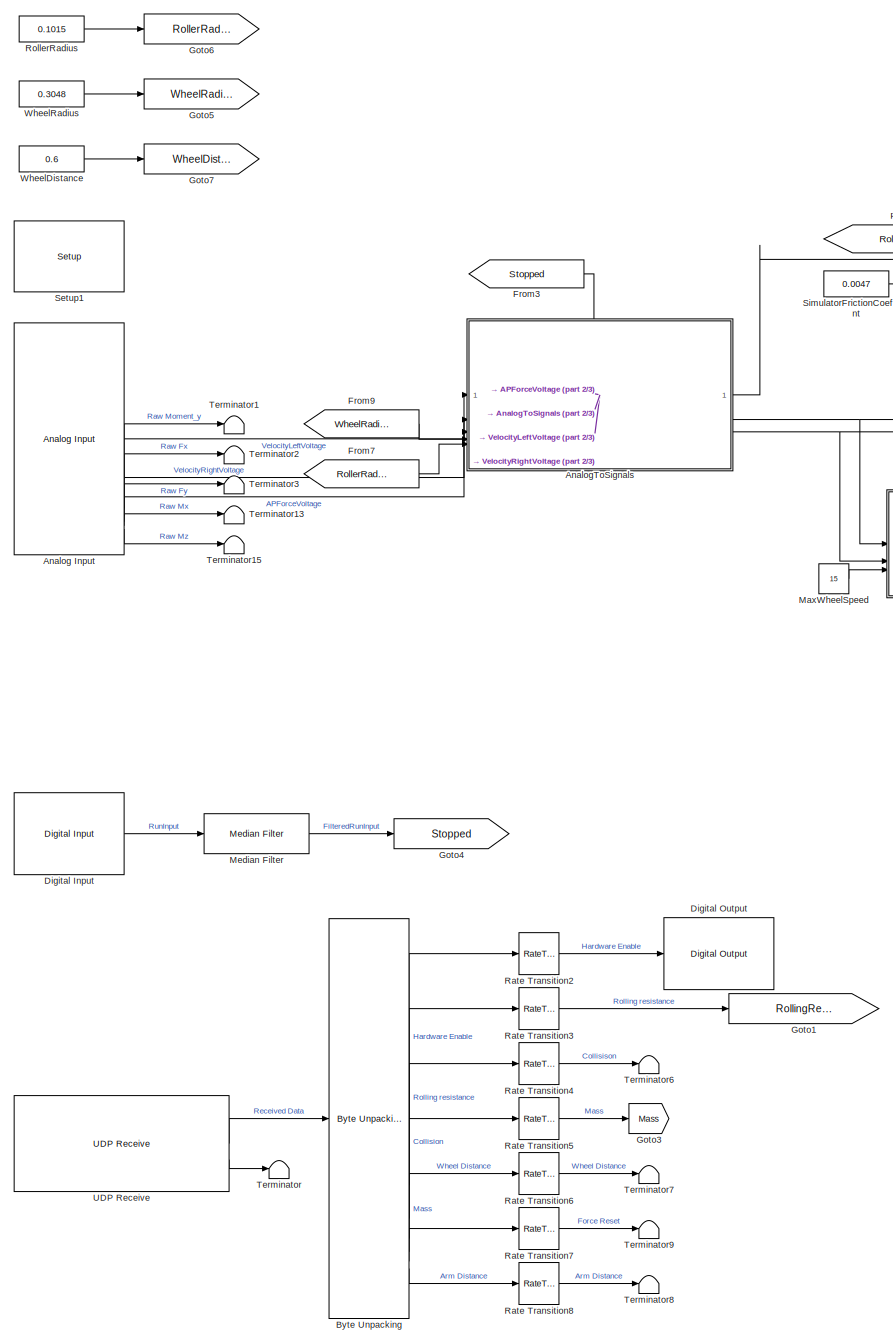
[diagram: root canvas - part 1/3, left side, full height]
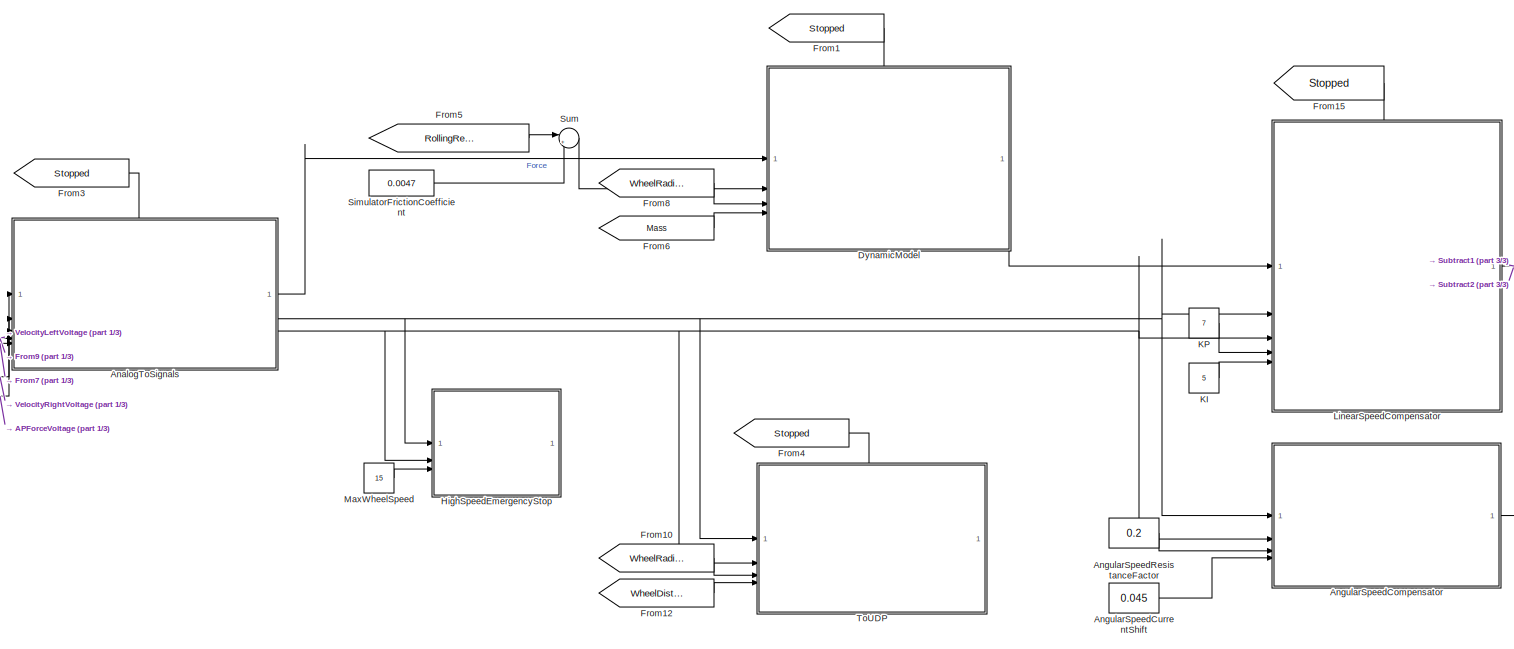
[diagram: root canvas - part 2/3, top center region]
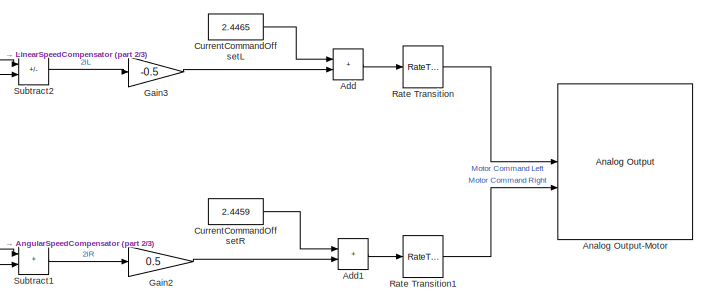
[diagram: root canvas - part 3/3, middle right region]
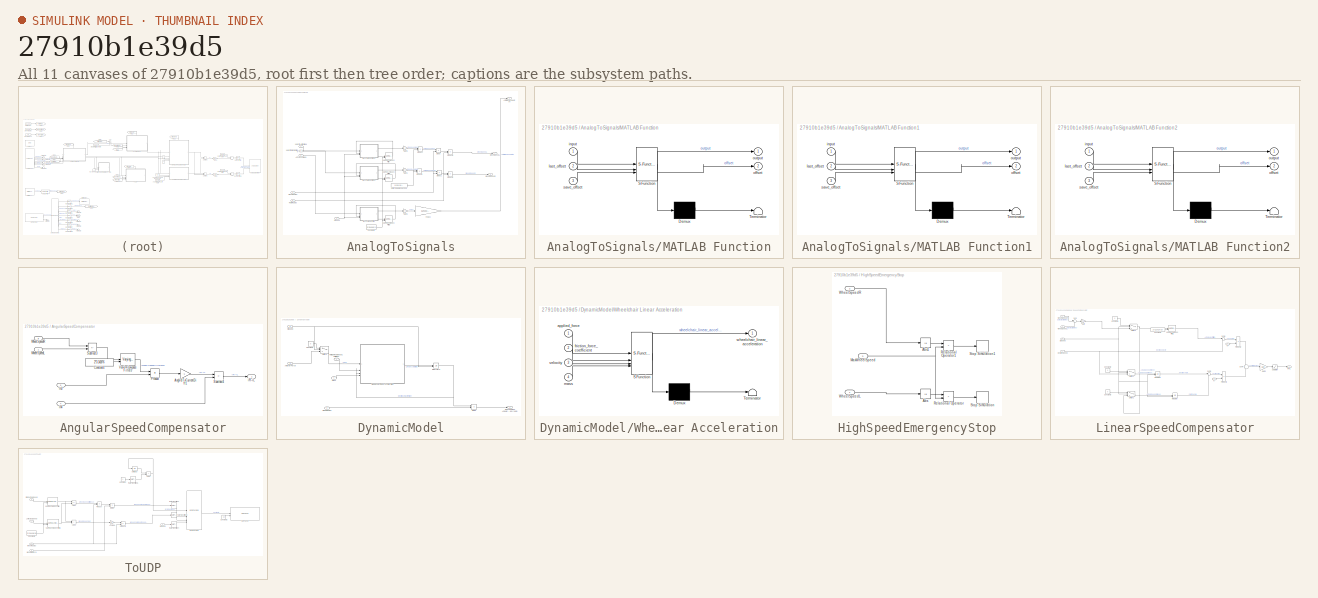
[diagram: thumbnail index - all 11 canvases of the model, root first then tree order]
MODEL slx_27910b1e39d5
KIND model
CONFIG AbsTol = auto
CONFIG EnableMultiTasking = off
CONFIG FixedStep = 1/2000
CONFIG MaxStep = auto
CONFIG MinStep = auto
CONFIG RelTol = 1e-3
CONFIG SampleTimeConstraint = Unconstrained
CONFIG SolverName = FixedStepAuto
CONFIG StartTime = 0.0
CONFIG StopTime = 1E6
BLOCK [Sum] Add
  IconShape = rectangular
BLOCK [Sum] Add1
  IconShape = rectangular
BLOCK [Reference] Analog Input  REF=speedgoatlib_IO183/Analog Input
  Priority = 0
  SourceBlock = speedgoatlib_IO183/Analog Input
  SourceProductName = Simulink Real-Time: Speedgoat I/O Blockset
  SourceType = ad_IO183
BLOCK [Reference] Analog Output-Motor  REF=speedgoatlib_IO183/Analog Output
  SourceBlock = speedgoatlib_IO183/Analog Output
  SourceProductName = Simulink Real-Time: Speedgoat I/O Blockset
  SourceType = da_IO183
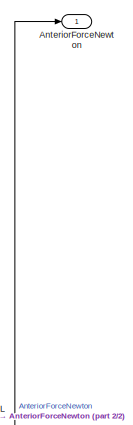
[diagram: AnalogToSignals - part 1/2, top right region]
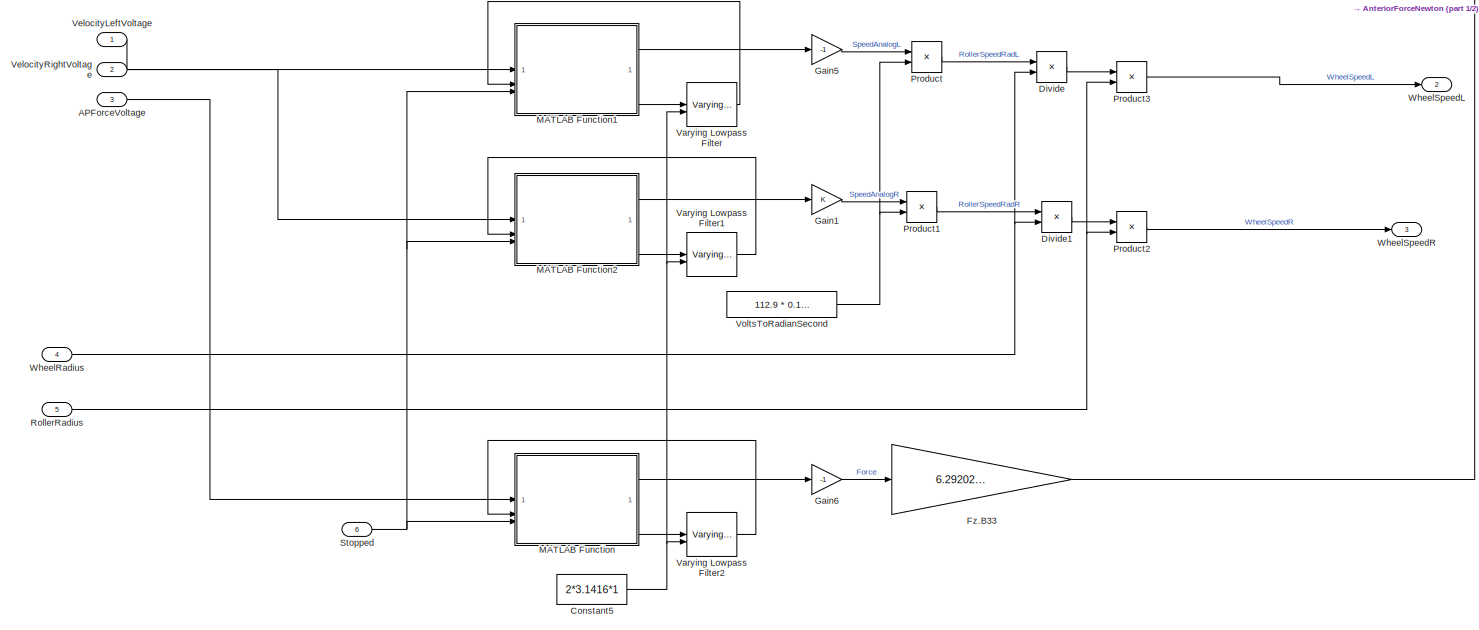
[diagram: AnalogToSignals - part 2/2, full width, middle band]
BLOCK [SubSystem] AnalogToSignals
  PortSchema = {"entries":[{"content":{"sides":[{"content":{"connectorIds":["In1","In2","In3","In4","In5"]},"type":"ConnectorPlacement.EquallySpacedRectSide","uuid":"33d34f65-8288-4f26-a259-c6a495dc8706"},{"content":{"connectorIds":["Out1","Out2","Out3"],"side":"RIGHT"},"type":"ConnectorPlacement.EquallySpacedRectSide","uuid":"464c1a73-e25a-412b-b070-c0497a01c93b"},{"content":{"connectorIds":["In6"],"side":"TOP"...<+283ch>
BLOCK [Inport] AnalogToSignals/APForceVoltage
  Port = 3
BLOCK [Outport] AnalogToSignals/AnteriorForceNewton
BLOCK [Constant] AnalogToSignals/Constant5
  Value = 2*3.1416*1
BLOCK [Product] AnalogToSignals/Divide
  Inputs = */
BLOCK [Product] AnalogToSignals/Divide1
  Inputs = */
BLOCK [Gain] AnalogToSignals/Fz.B33
  Gain = 6.29202 / (10 * 1000  * 1e-6)
BLOCK [Gain] AnalogToSignals/Gain1
BLOCK [Gain] AnalogToSignals/Gain5
  Gain = -1
BLOCK [Gain] AnalogToSignals/Gain6
  Gain = -1
BLOCK [SubSystem] AnalogToSignals/MATLAB Function
  ErrorFcn = Stateflow.Translate.translate
  LibrarySourceBlock = simulink/User-Defined\nFunctions/MATLAB Function
  PermitHierarchicalResolution = ExplicitOnly
  SFBlockType = MATLAB Function
  TreatAsAtomicUnit = on
BLOCK [Demux] AnalogToSignals/MATLAB Function/ Demux 
  Outputs = 1
BLOCK [S-Function] AnalogToSignals/MATLAB Function/ SFunction 
  EnableBusSupport = on
  FunctionName = sf_sfun
  PortCounts = [3 3]
  SFcnIsStateOwnerBlock = off
  SFunctionDeploymentMode = off
  Tag = Stateflow S-Function 4
BLOCK [Terminator] AnalogToSignals/MATLAB Function/ Terminator 
BLOCK [Inport] AnalogToSignals/MATLAB Function/input
BLOCK [Inport] AnalogToSignals/MATLAB Function/last_offset
  Port = 2
BLOCK [Outport] AnalogToSignals/MATLAB Function/offset
  Port = 2
BLOCK [Outport] AnalogToSignals/MATLAB Function/output
BLOCK [Inport] AnalogToSignals/MATLAB Function/save_offset
  Port = 3
BLOCK [SubSystem] AnalogToSignals/MATLAB Function1
  ErrorFcn = Stateflow.Translate.translate
  LibrarySourceBlock = simulink/User-Defined\nFunctions/MATLAB Function
  PermitHierarchicalResolution = ExplicitOnly
  SFBlockType = MATLAB Function
  TreatAsAtomicUnit = on
BLOCK [Demux] AnalogToSignals/MATLAB Function1/ Demux 
  Outputs = 1
BLOCK [S-Function] AnalogToSignals/MATLAB Function1/ SFunction 
  EnableBusSupport = on
  FunctionName = sf_sfun
  PortCounts = [3 3]
  SFcnIsStateOwnerBlock = off
  SFunctionDeploymentMode = off
  Tag = Stateflow S-Function 5
BLOCK [Terminator] AnalogToSignals/MATLAB Function1/ Terminator 
BLOCK [Inport] AnalogToSignals/MATLAB Function1/input
BLOCK [Inport] AnalogToSignals/MATLAB Function1/last_offset
  Port = 2
BLOCK [Outport] AnalogToSignals/MATLAB Function1/offset
  Port = 2
BLOCK [Outport] AnalogToSignals/MATLAB Function1/output
BLOCK [Inport] AnalogToSignals/MATLAB Function1/save_offset
  Port = 3
BLOCK [SubSystem] AnalogToSignals/MATLAB Function2
  ErrorFcn = Stateflow.Translate.translate
  LibrarySourceBlock = simulink/User-Defined\nFunctions/MATLAB Function
  PermitHierarchicalResolution = ExplicitOnly
  SFBlockType = MATLAB Function
  TreatAsAtomicUnit = on
BLOCK [Demux] AnalogToSignals/MATLAB Function2/ Demux 
  Outputs = 1
BLOCK [S-Function] AnalogToSignals/MATLAB Function2/ SFunction 
  EnableBusSupport = on
  FunctionName = sf_sfun
  PortCounts = [3 3]
  SFcnIsStateOwnerBlock = off
  SFunctionDeploymentMode = off
  Tag = Stateflow S-Function 6
BLOCK [Terminator] AnalogToSignals/MATLAB Function2/ Terminator 
BLOCK [Inport] AnalogToSignals/MATLAB Function2/input
BLOCK [Inport] AnalogToSignals/MATLAB Function2/last_offset
  Port = 2
BLOCK [Outport] AnalogToSignals/MATLAB Function2/offset
  Port = 2
BLOCK [Outport] AnalogToSignals/MATLAB Function2/output
BLOCK [Inport] AnalogToSignals/MATLAB Function2/save_offset
  Port = 3
BLOCK [Product] AnalogToSignals/Product
BLOCK [Product] AnalogToSignals/Product1
BLOCK [Product] AnalogToSignals/Product2
BLOCK [Product] AnalogToSignals/Product3
BLOCK [Inport] AnalogToSignals/RollerRadius
  Port = 5
BLOCK [Inport] AnalogToSignals/Stopped
  Port = 6
BLOCK [Reference] AnalogToSignals/Varying Lowpass Filter  REF=cstblocks/Linear Parameter Varying/Varying Lowpass Filter
  SourceBlock = cstblocks/Linear Parameter Varying/Varying Lowpass Filter
  SourceType = Varying Lowpass Filter
BLOCK [Reference] AnalogToSignals/Varying Lowpass Filter1  REF=cstblocks/Linear Parameter Varying/Varying Lowpass Filter
  SourceBlock = cstblocks/Linear Parameter Varying/Varying Lowpass Filter
  SourceType = Varying Lowpass Filter
BLOCK [Reference] AnalogToSignals/Varying Lowpass Filter2  REF=cstblocks/Linear Parameter Varying/Varying Lowpass Filter
  SourceBlock = cstblocks/Linear Parameter Varying/Varying Lowpass Filter
  SourceType = Varying Lowpass Filter
BLOCK [Inport] AnalogToSignals/VelocityLeftVoltage
BLOCK [Inport] AnalogToSignals/VelocityRightVoltage
  Port = 2
BLOCK [Constant] AnalogToSignals/VoltsToRadianSecond
  Value = 112.9 * 0.10472
BLOCK [Inport] AnalogToSignals/WheelRadius
  Port = 4
BLOCK [Outport] AnalogToSignals/WheelSpeedL
  Port = 2
BLOCK [Outport] AnalogToSignals/WheelSpeedR
  Port = 3
BLOCK [SubSystem] AngularSpeedCompensator
BLOCK [Gain] AngularSpeedCompensator/AngVelToCurrentDiff1
  Gain = -1
BLOCK [Constant] AngularSpeedCompensator/Constant4
  Value = 2*3.1416*6
BLOCK [Inport] AngularSpeedCompensator/In3
  Port = 3
BLOCK [Inport] AngularSpeedCompensator/In4
  Port = 4
BLOCK [Product] AngularSpeedCompensator/Product
BLOCK [Sum] AngularSpeedCompensator/Subtract3
  IconShape = rectangular
  Inputs = +-
BLOCK [Sum] AngularSpeedCompensator/Subtract4
  IconShape = rectangular
  Inputs = +-
BLOCK [Reference] AngularSpeedCompensator/Varying Lowpass Filter3  REF=cstblocks/Linear Parameter Varying/Varying Lowpass Filter
  SourceBlock = cstblocks/Linear Parameter Varying/Varying Lowpass Filter
  SourceType = Varying Lowpass Filter
BLOCK [Inport] AngularSpeedCompensator/WheelSpeedL
BLOCK [Inport] AngularSpeedCompensator/WheelSpeedR
  Port = 2
BLOCK [Outport] AngularSpeedCompensator/iR-iL
BLOCK [Constant] AngularSpeedCurrentShift
  Value = 0.045
BLOCK [Constant] AngularSpeedResistanceFactor
  Value = 0.2
BLOCK [Reference] Byte Unpacking  REF=slrealtimeutilitieslib/Byte Unpacking
  SourceBlock = slrealtimeutilitieslib/Byte Unpacking
  SourceType = slreraltimebytepacking
BLOCK [Constant] CurrentCommandOffsetL
  Value = 2.4465
BLOCK [Constant] CurrentCommandOffsetR
  Value = 2.4459
BLOCK [Reference] Digital Input  REF=speedgoatlib_IO183/Digital Input
  SourceBlock = speedgoatlib_IO183/Digital Input
  SourceProductName = Simulink Real-Time: Speedgoat I/O Blockset
  SourceType = di_IO183
BLOCK [Reference] Digital Output  REF=speedgoatlib_IO183/Digital Output
  SourceBlock = speedgoatlib_IO183/Digital Output
  SourceProductName = Simulink Real-Time: Speedgoat I/O Blockset
  SourceType = do_IO183
BLOCK [SubSystem] DynamicModel
  PortSchema = {"entries":[{"content":{"sides":[{"content":{"connectorIds":["In1","In2","In3","In4"]},"type":"ConnectorPlacement.EquallySpacedRectSide","uuid":"698b5f1b-e41d-47ec-8a78-8e111d48540c"},{"content":{"connectorIds":["Out1"],"side":"RIGHT"},"type":"ConnectorPlacement.EquallySpacedRectSide","uuid":"a52a2d34-ec8e-4f9e-8684-ea9d86dd283b"},{"content":{"connectorIds":["In5"],"side":"TOP"},"type":"ConnectorP...<+263ch>
BLOCK [Inport] DynamicModel/AnteriorForce 
BLOCK [Constant] DynamicModel/Constant7
  Value = 0
BLOCK [Outport] DynamicModel/Desired Mean Angular Speed (rad//s)
BLOCK [Product] DynamicModel/Divide
  Inputs = */
BLOCK [Integrator] DynamicModel/Integrator6
  ExternalReset = level hold
BLOCK [Inport] DynamicModel/Mass
  Port = 4
BLOCK [Inport] DynamicModel/RollingResistanceCoefficient
  Port = 2
BLOCK [Inport] DynamicModel/Stopped
  Port = 5
BLOCK [Switch] DynamicModel/Switch2
  Criteria = u2 ~= 0
  InputSameDT = off
  SaturateOnIntegerOverflow = off
BLOCK [Inport] DynamicModel/WheelRadius
  Port = 3
BLOCK [SubSystem] DynamicModel/Wheelchair Linear Acceleration
  ErrorFcn = Stateflow.Translate.translate
  PermitHierarchicalResolution = ExplicitOnly
  SFBlockType = MATLAB Function
  TreatAsAtomicUnit = on
BLOCK [Demux] DynamicModel/Wheelchair Linear Acceleration/ Demux 
  Outputs = 1
BLOCK [S-Function] DynamicModel/Wheelchair Linear Acceleration/ SFunction 
  EnableBusSupport = on
  FunctionName = sf_sfun
  PortCounts = [4 2]
  SFcnIsStateOwnerBlock = off
  SFunctionDeploymentMode = off
  Tag = Stateflow S-Function 7
BLOCK [Terminator] DynamicModel/Wheelchair Linear Acceleration/ Terminator 
BLOCK [Inport] DynamicModel/Wheelchair Linear Acceleration/applied_force
BLOCK [Inport] DynamicModel/Wheelchair Linear Acceleration/friction_force_coefficient
  Port = 2
BLOCK [Inport] DynamicModel/Wheelchair Linear Acceleration/mass
  Port = 4
BLOCK [Inport] DynamicModel/Wheelchair Linear Acceleration/velocity
  Port = 3
BLOCK [Outport] DynamicModel/Wheelchair Linear Acceleration/wheelchair_linear_acceleration
BLOCK [From] From1
  GotoTag = Stopped
BLOCK [From] From10
  GotoTag = WheelRadius
BLOCK [From] From12
  GotoTag = WheelDistance
BLOCK [From] From15
  GotoTag = Stopped
BLOCK [From] From3
  GotoTag = Stopped
BLOCK [From] From4
  GotoTag = Stopped
BLOCK [From] From5
  GotoTag = RollingResistanceCoefficient
BLOCK [From] From6
  GotoTag = Mass
BLOCK [From] From7
  GotoTag = RollerRadius
BLOCK [From] From8
  GotoTag = WheelRadius
BLOCK [From] From9
  GotoTag = WheelRadius
BLOCK [Gain] Gain2
  Gain = 0.5
BLOCK [Gain] Gain3
  Gain = -0.5
BLOCK [Goto] Goto1
  GotoTag = RollingResistanceCoefficient
BLOCK [Goto] Goto3
  GotoTag = Mass
BLOCK [Goto] Goto4
  GotoTag = Stopped
BLOCK [Goto] Goto5
  GotoTag = WheelRadius
BLOCK [Goto] Goto6
  GotoTag = RollerRadius
BLOCK [Goto] Goto7
  GotoTag = WheelDistance
BLOCK [SubSystem] HighSpeedEmergencyStop
BLOCK [Abs] HighSpeedEmergencyStop/Abs
  SaturateOnIntegerOverflow = off
BLOCK [Abs] HighSpeedEmergencyStop/Abs1
  SaturateOnIntegerOverflow = off
BLOCK [Inport] HighSpeedEmergencyStop/MaxWheelSpeed
  Port = 3
BLOCK [RelationalOperator] HighSpeedEmergencyStop/Relational Operator
  InputSameDT = off
  Operator = >
  OutDataTypeStr = boolean
  RndMeth = Simplest
BLOCK [RelationalOperator] HighSpeedEmergencyStop/Relational Operator1
  InputSameDT = off
  Operator = >
  OutDataTypeStr = boolean
  RndMeth = Simplest
BLOCK [Stop] HighSpeedEmergencyStop/Stop Simulation
BLOCK [Stop] HighSpeedEmergencyStop/Stop Simulation1
BLOCK [Inport] HighSpeedEmergencyStop/WheelSpeedL
BLOCK [Inport] HighSpeedEmergencyStop/WheelSpeedR
  Port = 2
BLOCK [Constant] KI
  Value = 5
BLOCK [Constant] KP
  Value = 7
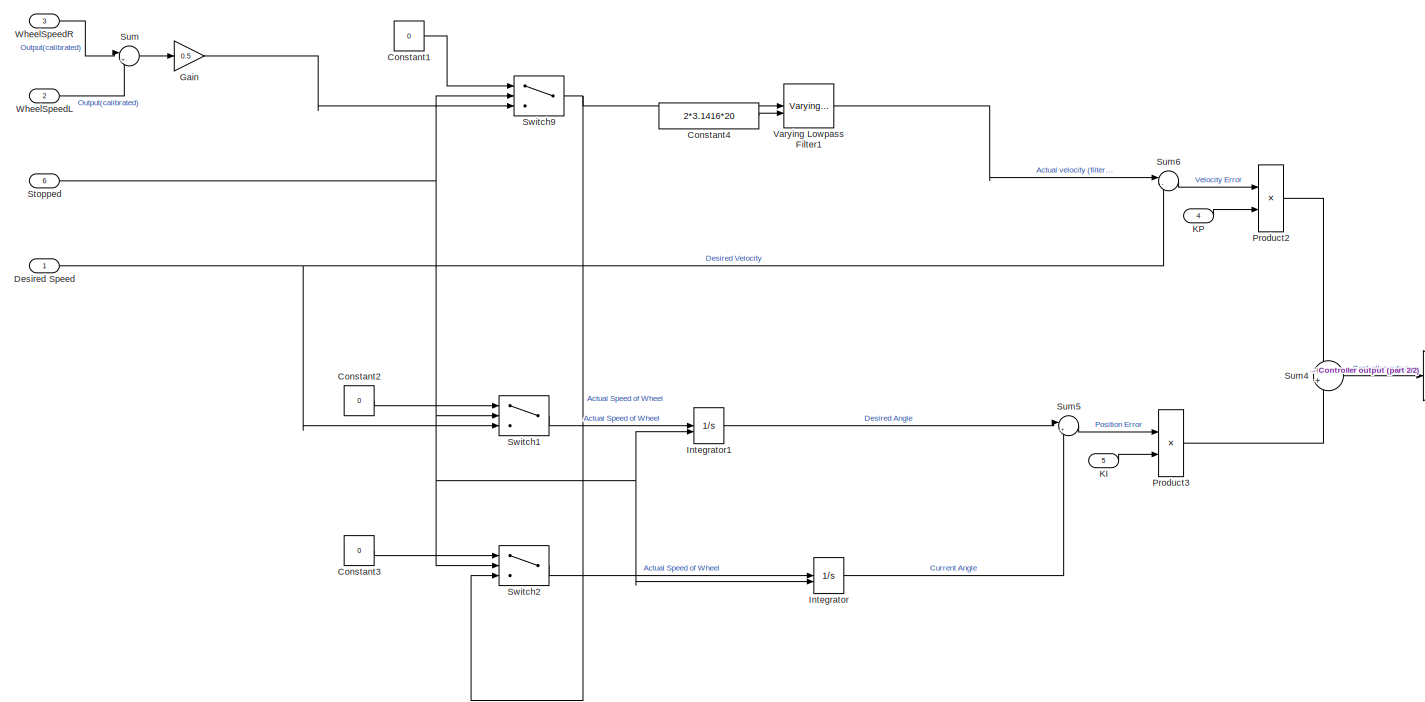
[diagram: LinearSpeedCompensator - part 1/2, most of the canvas]
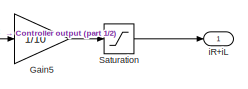
[diagram: LinearSpeedCompensator - part 2/2, middle right region]
BLOCK [SubSystem] LinearSpeedCompensator
  PortSchema = {"entries":[{"content":{"sides":[{"content":{"connectorIds":["In1","In2","In3","In4","In5"]},"type":"ConnectorPlacement.EquallySpacedRectSide","uuid":"9b7edc03-5e72-48f4-bed7-21920e73c297"},{"content":{"connectorIds":["Out1"],"side":"RIGHT"},"type":"ConnectorPlacement.EquallySpacedRectSide","uuid":"1856f1b7-fc85-471c-9138-bfce3ff137ef"},{"content":{"connectorIds":["In6"],"side":"TOP"},"type":"Conn...<+269ch>
BLOCK [Constant] LinearSpeedCompensator/Constant1
  Value = 0
BLOCK [Constant] LinearSpeedCompensator/Constant2
  Value = 0
BLOCK [Constant] LinearSpeedCompensator/Constant3
  Value = 0
BLOCK [Constant] LinearSpeedCompensator/Constant4
  Value = 2*3.1416*20
BLOCK [Inport] LinearSpeedCompensator/Desired Speed
BLOCK [Gain] LinearSpeedCompensator/Gain
  Gain = 0.5
BLOCK [Gain] LinearSpeedCompensator/Gain5
  Gain = 1/10
BLOCK [Integrator] LinearSpeedCompensator/Integrator
  ExternalReset = level hold
BLOCK [Integrator] LinearSpeedCompensator/Integrator1
  ExternalReset = level hold
BLOCK [Inport] LinearSpeedCompensator/KI
  Port = 5
BLOCK [Inport] LinearSpeedCompensator/KP
  Port = 4
BLOCK [Product] LinearSpeedCompensator/Product2
  RndMeth = Zero
BLOCK [Product] LinearSpeedCompensator/Product3
  RndMeth = Zero
BLOCK [Saturate] LinearSpeedCompensator/Saturation
  LowerLimit = -4
  UpperLimit = 4
BLOCK [Inport] LinearSpeedCompensator/Stopped
  Port = 6
BLOCK [Sum] LinearSpeedCompensator/Sum
  Inputs = |++
BLOCK [Sum] LinearSpeedCompensator/Sum4
BLOCK [Sum] LinearSpeedCompensator/Sum5
  Inputs = |+-
BLOCK [Sum] LinearSpeedCompensator/Sum6
  Inputs = |-+
BLOCK [Switch] LinearSpeedCompensator/Switch1
  Criteria = u2 ~= 0
  InputSameDT = off
  SaturateOnIntegerOverflow = off
BLOCK [Switch] LinearSpeedCompensator/Switch2
  Criteria = u2 ~= 0
  InputSameDT = off
  SaturateOnIntegerOverflow = off
BLOCK [Switch] LinearSpeedCompensator/Switch9
  Criteria = u2 ~= 0
  InputSameDT = off
  SaturateOnIntegerOverflow = off
BLOCK [Reference] LinearSpeedCompensator/Varying Lowpass Filter1  REF=cstblocks/Linear Parameter Varying/Varying Lowpass Filter
  SourceBlock = cstblocks/Linear Parameter Varying/Varying Lowpass Filter
  SourceType = Varying Lowpass Filter
BLOCK [Inport] LinearSpeedCompensator/WheelSpeedL
  Port = 2
BLOCK [Inport] LinearSpeedCompensator/WheelSpeedR
  Port = 3
BLOCK [Outport] LinearSpeedCompensator/iR+iL
BLOCK [Constant] MaxWheelSpeed
  Value = 15
BLOCK [Reference] Median Filter  REF=dspstat3/Median
Filter
  LibrarySourceBlock = dspfdesign/Median\nFilter
  SourceBlock = dspstat3/Median\nFilter
  SourceType = dsp.simulink.MedianFilter
BLOCK [RateTransition] Rate Transition
BLOCK [RateTransition] Rate Transition1
BLOCK [RateTransition] Rate Transition2
  OutPortSampleTime = 1/2000
BLOCK [RateTransition] Rate Transition3
  OutPortSampleTime = 1/2000
BLOCK [RateTransition] Rate Transition4
  OutPortSampleTime = 1/2000
BLOCK [RateTransition] Rate Transition5
  OutPortSampleTime = 1/2000
BLOCK [RateTransition] Rate Transition6
  OutPortSampleTime = 1/2000
BLOCK [RateTransition] Rate Transition7
  OutPortSampleTime = 1/2000
BLOCK [RateTransition] Rate Transition8
  OutPortSampleTime = 1/2000
BLOCK [Constant] RollerRadius
  Value = 0.1015
BLOCK [Reference] Setup1  REF=speedgoatlib_IO183/Setup
  SourceBlock = speedgoatlib_IO183/Setup
  SourceProductName = Simulink Real-Time: Speedgoat I/O Blockset
  SourceType = setup_IO183
BLOCK [Constant] SimulatorFrictionCoefficient
  Value = 0.0047
BLOCK [Sum] Subtract1
  IconShape = rectangular
BLOCK [Sum] Subtract2
  IconShape = rectangular
  Inputs = +-
BLOCK [Sum] Sum
  Inputs = |+-
BLOCK [Terminator] Terminator
BLOCK [Terminator] Terminator1
BLOCK [Terminator] Terminator13
BLOCK [Terminator] Terminator15
BLOCK [Terminator] Terminator2
BLOCK [Terminator] Terminator3
BLOCK [Terminator] Terminator6
BLOCK [Terminator] Terminator7
BLOCK [Terminator] Terminator8
BLOCK [Terminator] Terminator9
BLOCK [SubSystem] ToUDP
  PortSchema = {"entries":[{"content":{"sides":[{"content":{"connectorIds":["In1","In2","In3","In4"]},"type":"ConnectorPlacement.EquallySpacedRectSide","uuid":"20cbcfc2-0ca7-4a2f-a613-0278f24034ac"},{"content":{"connectorIds":[],"side":"RIGHT"},"type":"ConnectorPlacement.EquallySpacedRectSide","uuid":"dd88a308-46d9-424c-b176-6f22faf13019"},{"content":{"connectorIds":["In5"],"side":"TOP"},"type":"ConnectorPlaceme...<+401ch>
BLOCK [Sum] ToUDP/Add2
  IconShape = rectangular
BLOCK [Sum] ToUDP/Add3
  IconShape = rectangular
BLOCK [Sum] ToUDP/Add4
  IconShape = rectangular
  Inputs = +-
BLOCK [Gain] ToUDP/Average
  Gain = 1/2
  NameLocation = top
BLOCK [Reference] ToUDP/Byte Packing  REF=slrealtimeutilitieslib/Byte Packing
  SourceBlock = slrealtimeutilitieslib/Byte Packing
  SourceType = slrealtimebytepacking
BLOCK [Constant] ToUDP/Constant
BLOCK [Constant] ToUDP/Constant1
  Value = 2*3.1416*6
BLOCK [Constant] ToUDP/Constant2
  Value = 32
BLOCK [Product] ToUDP/Divide
  Inputs = */
BLOCK [Inport] ToUDP/Left Actual Speed
BLOCK [Product] ToUDP/Product
BLOCK [Product] ToUDP/Product1
BLOCK [RateTransition] ToUDP/Rate Transition1
  OutPortSampleTime = 1/50
BLOCK [RateTransition] ToUDP/Rate Transition3
  OutPortSampleTime = 1/50
BLOCK [RateTransition] ToUDP/Rate Transition4
  OutPortSampleTime = 1/50
BLOCK [RateTransition] ToUDP/Rate Transition5
  OutPortSampleTime = 1/50
BLOCK [Inport] ToUDP/Right Actual Speed
  Port = 2
BLOCK [Inport] ToUDP/Stopped
  Port = 5
BLOCK [Reference] ToUDP/UDP Send  REF=slrealtimeiplib/UDP Send
  SourceBlock = slrealtimeiplib/UDP Send
  SourceType = slrealtimeudpsend
BLOCK [UnitDelay] ToUDP/Unit Delay
  HasFrameUpgradeWarning = on
  SampleTime = -1
BLOCK [Reference] ToUDP/Varying Lowpass Filter  REF=cstblocks/Linear Parameter Varying/Varying Lowpass Filter
  SourceBlock = cstblocks/Linear Parameter Varying/Varying Lowpass Filter
  SourceType = Varying Lowpass Filter
BLOCK [Reference] ToUDP/Varying Lowpass Filter1  REF=cstblocks/Linear Parameter Varying/Varying Lowpass Filter
  SourceBlock = cstblocks/Linear Parameter Varying/Varying Lowpass Filter
  SourceType = Varying Lowpass Filter
BLOCK [Inport] ToUDP/WheelDistance
  Port = 4
BLOCK [Inport] ToUDP/WheelRadius
  Port = 3
BLOCK [Reference] UDP Receive  REF=slrealtimeiplib/UDP Receive
  SourceBlock = slrealtimeiplib/UDP Receive
  SourceType = slrealtimeudpreceive
BLOCK [Constant] WheelDistance
  Value = 0.6
BLOCK [Constant] WheelRadius
  Value = 0.3048
LINE Add1:1 -> Rate Transition1:1
LINE Add:1 -> Rate Transition:1
LINE Analog Input:1 -> AnalogToSignals:1
LINE Analog Input:2 -> AnalogToSignals:2
LINE Analog Input:3 -> AnalogToSignals:3
LINE Analog Input:4 -> Terminator1:1
LINE Analog Input:5 -> Terminator2:1
LINE Analog Input:6 -> Terminator3:1
LINE Analog Input:7 -> Terminator13:1
LINE Analog Input:8 -> Terminator15:1
LINE AnalogToSignals/APForceVoltage:1 -> AnalogToSignals/MATLAB Function:1
NET AnalogToSignals/Constant5:1 -> AnalogToSignals/Varying Lowpass Filter1:2, AnalogToSignals/Varying Lowpass Filter2:2, AnalogToSignals/Varying Lowpass Filter:2
LINE AnalogToSignals/Divide1:1 -> AnalogToSignals/Product2:1
LINE AnalogToSignals/Divide:1 -> AnalogToSignals/Product3:1
LINE AnalogToSignals/Fz.B33:1 -> AnalogToSignals/AnteriorForceNewton:1
LINE AnalogToSignals/Gain1:1 -> AnalogToSignals/Product1:1
LINE AnalogToSignals/Gain5:1 -> AnalogToSignals/Product:1
LINE AnalogToSignals/Gain6:1 -> AnalogToSignals/Fz.B33:1
LINE AnalogToSignals/MATLAB Function1:1 -> AnalogToSignals/Gain5:1
LINE AnalogToSignals/MATLAB Function1:2 -> AnalogToSignals/Varying Lowpass Filter:1
LINE AnalogToSignals/MATLAB Function2:1 -> AnalogToSignals/Gain1:1
LINE AnalogToSignals/MATLAB Function2:2 -> AnalogToSignals/Varying Lowpass Filter1:1
LINE AnalogToSignals/MATLAB Function:1 -> AnalogToSignals/Gain6:1
LINE AnalogToSignals/MATLAB Function:2 -> AnalogToSignals/Varying Lowpass Filter2:1
LINE AnalogToSignals/Product1:1 -> AnalogToSignals/Divide1:1
LINE AnalogToSignals/Product2:1 -> AnalogToSignals/WheelSpeedR:1
LINE AnalogToSignals/Product3:1 -> AnalogToSignals/WheelSpeedL:1
LINE AnalogToSignals/Product:1 -> AnalogToSignals/Divide:1
NET AnalogToSignals/RollerRadius:1 -> AnalogToSignals/Product2:2, AnalogToSignals/Product3:2
NET AnalogToSignals/Stopped:1 -> AnalogToSignals/MATLAB Function1:3, AnalogToSignals/MATLAB Function2:3, AnalogToSignals/MATLAB Function:3
LINE AnalogToSignals/Varying Lowpass Filter1:1 -> AnalogToSignals/MATLAB Function2:2
LINE AnalogToSignals/Varying Lowpass Filter2:1 -> AnalogToSignals/MATLAB Function:2
LINE AnalogToSignals/Varying Lowpass Filter:1 -> AnalogToSignals/MATLAB Function1:2
LINE AnalogToSignals/VelocityLeftVoltage:1 -> AnalogToSignals/MATLAB Function1:1
LINE AnalogToSignals/VelocityRightVoltage:1 -> AnalogToSignals/MATLAB Function2:1
NET AnalogToSignals/VoltsToRadianSecond:1 -> AnalogToSignals/Product1:2, AnalogToSignals/Product:2
NET AnalogToSignals/WheelRadius:1 -> AnalogToSignals/Divide1:2, AnalogToSignals/Divide:2
LINE AnalogToSignals:1 -> DynamicModel:1
NET AnalogToSignals:2 -> AngularSpeedCompensator:1, HighSpeedEmergencyStop:1, LinearSpeedCompensator:2, ToUDP:1
NET AnalogToSignals:3 -> AngularSpeedCompensator:2, HighSpeedEmergencyStop:2, LinearSpeedCompensator:3, ToUDP:2
LINE AngularSpeedCompensator/AngVelToCurrentDiff1:1 -> AngularSpeedCompensator/Subtract4:1
LINE AngularSpeedCompensator/Constant4:1 -> AngularSpeedCompensator/Varying Lowpass Filter3:2
LINE AngularSpeedCompensator/In3:1 -> AngularSpeedCompensator/Product:2
LINE AngularSpeedCompensator/In4:1 -> AngularSpeedCompensator/Subtract4:2
LINE AngularSpeedCompensator/Product:1 -> AngularSpeedCompensator/AngVelToCurrentDiff1:1
LINE AngularSpeedCompensator/Subtract3:1 -> AngularSpeedCompensator/Varying Lowpass Filter3:1
LINE AngularSpeedCompensator/Subtract4:1 -> AngularSpeedCompensator/iR-iL:1
LINE AngularSpeedCompensator/Varying Lowpass Filter3:1 -> AngularSpeedCompensator/Product:1
LINE AngularSpeedCompensator/WheelSpeedL:1 -> AngularSpeedCompensator/Subtract3:2
LINE AngularSpeedCompensator/WheelSpeedR:1 -> AngularSpeedCompensator/Subtract3:1
NET AngularSpeedCompensator:1 -> Subtract1:1, Subtract2:2
LINE AngularSpeedCurrentShift:1 -> AngularSpeedCompensator:4
LINE AngularSpeedResistanceFactor:1 -> AngularSpeedCompensator:3
LINE Byte Unpacking:1 -> Rate Transition2:1
LINE Byte Unpacking:2 -> Rate Transition3:1
LINE Byte Unpacking:3 -> Rate Transition4:1
LINE Byte Unpacking:4 -> Rate Transition5:1
LINE Byte Unpacking:5 -> Rate Transition6:1
LINE Byte Unpacking:6 -> Rate Transition7:1
LINE Byte Unpacking:7 -> Rate Transition8:1
LINE CurrentCommandOffsetL:1 -> Add:1
LINE CurrentCommandOffsetR:1 -> Add1:1
LINE Digital Input:1 -> Median Filter:1
LINE DynamicModel/AnteriorForce :1 -> DynamicModel/Switch2:3
LINE DynamicModel/Constant7:1 -> DynamicModel/Switch2:1
LINE DynamicModel/Divide:1 -> DynamicModel/Desired Mean Angular Speed (rad//s):1
NET DynamicModel/Integrator6:1 -> DynamicModel/Divide:1, DynamicModel/Wheelchair Linear Acceleration:3
LINE DynamicModel/Mass:1 -> DynamicModel/Wheelchair Linear Acceleration:4
LINE DynamicModel/RollingResistanceCoefficient:1 -> DynamicModel/Wheelchair Linear Acceleration:2
NET DynamicModel/Stopped:1 -> DynamicModel/Integrator6:2, DynamicModel/Switch2:2
LINE DynamicModel/Switch2:1 -> DynamicModel/Wheelchair Linear Acceleration:1
LINE DynamicModel/WheelRadius:1 -> DynamicModel/Divide:2
LINE DynamicModel/Wheelchair Linear Acceleration:1 -> DynamicModel/Integrator6:1
LINE DynamicModel:1 -> LinearSpeedCompensator:1
LINE From10:1 -> ToUDP:3
LINE From12:1 -> ToUDP:4
LINE From15:1 -> LinearSpeedCompensator:6
LINE From1:1 -> DynamicModel:5
LINE From3:1 -> AnalogToSignals:6
LINE From4:1 -> ToUDP:5
LINE From5:1 -> Sum:1
LINE From6:1 -> DynamicModel:4
LINE From7:1 -> AnalogToSignals:5
LINE From8:1 -> DynamicModel:3
LINE From9:1 -> AnalogToSignals:4
LINE Gain2:1 -> Add1:2
LINE Gain3:1 -> Add:2
LINE HighSpeedEmergencyStop/Abs1:1 -> HighSpeedEmergencyStop/Relational Operator1:1
LINE HighSpeedEmergencyStop/Abs:1 -> HighSpeedEmergencyStop/Relational Operator:1
NET HighSpeedEmergencyStop/MaxWheelSpeed:1 -> HighSpeedEmergencyStop/Relational Operator1:2, HighSpeedEmergencyStop/Relational Operator:2
LINE HighSpeedEmergencyStop/Relational Operator1:1 -> HighSpeedEmergencyStop/Stop Simulation1:1
LINE HighSpeedEmergencyStop/Relational Operator:1 -> HighSpeedEmergencyStop/Stop Simulation:1
LINE HighSpeedEmergencyStop/WheelSpeedL:1 -> HighSpeedEmergencyStop/Abs:1
LINE HighSpeedEmergencyStop/WheelSpeedR:1 -> HighSpeedEmergencyStop/Abs1:1
LINE KI:1 -> LinearSpeedCompensator:5
LINE KP:1 -> LinearSpeedCompensator:4
LINE LinearSpeedCompensator/Constant1:1 -> LinearSpeedCompensator/Switch9:1
LINE LinearSpeedCompensator/Constant2:1 -> LinearSpeedCompensator/Switch1:1
LINE LinearSpeedCompensator/Constant3:1 -> LinearSpeedCompensator/Switch2:1
LINE LinearSpeedCompensator/Constant4:1 -> LinearSpeedCompensator/Varying Lowpass Filter1:2
NET LinearSpeedCompensator/Desired Speed:1 -> LinearSpeedCompensator/Sum6:2, LinearSpeedCompensator/Switch1:3
LINE LinearSpeedCompensator/Gain5:1 -> LinearSpeedCompensator/Saturation:1
LINE LinearSpeedCompensator/Gain:1 -> LinearSpeedCompensator/Switch9:3
LINE LinearSpeedCompensator/Integrator1:1 -> LinearSpeedCompensator/Sum5:1
LINE LinearSpeedCompensator/Integrator:1 -> LinearSpeedCompensator/Sum5:2
LINE LinearSpeedCompensator/KI:1 -> LinearSpeedCompensator/Product3:2
LINE LinearSpeedCompensator/KP:1 -> LinearSpeedCompensator/Product2:2
LINE LinearSpeedCompensator/Product2:1 -> LinearSpeedCompensator/Sum4:1
LINE LinearSpeedCompensator/Product3:1 -> LinearSpeedCompensator/Sum4:2
LINE LinearSpeedCompensator/Saturation:1 -> LinearSpeedCompensator/iR+iL:1
NET LinearSpeedCompensator/Stopped:1 -> LinearSpeedCompensator/Integrator1:2, LinearSpeedCompensator/Integrator:2, LinearSpeedCompensator/Switch1:2, LinearSpeedCompensator/Switch2:2, LinearSpeedCompensator/Switch9:2
LINE LinearSpeedCompensator/Sum4:1 -> LinearSpeedCompensator/Gain5:1
LINE LinearSpeedCompensator/Sum5:1 -> LinearSpeedCompensator/Product3:1
LINE LinearSpeedCompensator/Sum6:1 -> LinearSpeedCompensator/Product2:1
LINE LinearSpeedCompensator/Sum:1 -> LinearSpeedCompensator/Gain:1
LINE LinearSpeedCompensator/Switch1:1 -> LinearSpeedCompensator/Integrator1:1
LINE LinearSpeedCompensator/Switch2:1 -> LinearSpeedCompensator/Integrator:1
NET LinearSpeedCompensator/Switch9:1 -> LinearSpeedCompensator/Switch2:3, LinearSpeedCompensator/Varying Lowpass Filter1:1
LINE LinearSpeedCompensator/Varying Lowpass Filter1:1 -> LinearSpeedCompensator/Sum6:1
LINE LinearSpeedCompensator/WheelSpeedL:1 -> LinearSpeedCompensator/Sum:2
LINE LinearSpeedCompensator/WheelSpeedR:1 -> LinearSpeedCompensator/Sum:1
NET LinearSpeedCompensator:1 -> Subtract1:2, Subtract2:1
LINE MaxWheelSpeed:1 -> HighSpeedEmergencyStop:3
LINE Median Filter:1 -> Goto4:1
LINE Rate Transition1:1 -> Analog Output-Motor:2
LINE Rate Transition2:1 -> Digital Output:1
LINE Rate Transition3:1 -> Goto1:1
LINE Rate Transition4:1 -> Terminator6:1
LINE Rate Transition5:1 -> Goto3:1
LINE Rate Transition6:1 -> Terminator7:1
LINE Rate Transition7:1 -> Terminator9:1
LINE Rate Transition8:1 -> Terminator8:1
LINE Rate Transition:1 -> Analog Output-Motor:1
LINE RollerRadius:1 -> Goto6:1
LINE SimulatorFrictionCoefficient:1 -> Sum:2
LINE Subtract1:1 -> Gain2:1
LINE Subtract2:1 -> Gain3:1
LINE Sum:1 -> DynamicModel:2
NET ToUDP/Add2:1 -> ToUDP/Byte Packing:1, ToUDP/Unit Delay:1
LINE ToUDP/Add3:1 -> ToUDP/Average:1
LINE ToUDP/Add4:1 -> ToUDP/Product:1
LINE ToUDP/Average:1 -> ToUDP/Product1:1
LINE ToUDP/Byte Packing:1 -> ToUDP/UDP Send:1
NET ToUDP/Constant1:1 -> ToUDP/Varying Lowpass Filter1:2, ToUDP/Varying Lowpass Filter:2
LINE ToUDP/Constant2:1 -> ToUDP/UDP Send:2
LINE ToUDP/Constant:1 -> ToUDP/Rate Transition5:1
LINE ToUDP/Divide:1 -> ToUDP/Rate Transition1:1
LINE ToUDP/Left Actual Speed:1 -> ToUDP/Varying Lowpass Filter1:1
LINE ToUDP/Product1:1 -> ToUDP/Rate Transition3:1
LINE ToUDP/Product:1 -> ToUDP/Divide:1
LINE ToUDP/Rate Transition1:1 -> ToUDP/Byte Packing:2
LINE ToUDP/Rate Transition3:1 -> ToUDP/Byte Packing:3
LINE ToUDP/Rate Transition4:1 -> ToUDP/Byte Packing:4
LINE ToUDP/Rate Transition5:1 -> ToUDP/Add2:2
LINE ToUDP/Right Actual Speed:1 -> ToUDP/Varying Lowpass Filter:1
LINE ToUDP/Stopped:1 -> ToUDP/Rate Transition4:1
LINE ToUDP/Unit Delay:1 -> ToUDP/Add2:1
NET ToUDP/Varying Lowpass Filter1:1 -> ToUDP/Add3:2, ToUDP/Add4:2
NET ToUDP/Varying Lowpass Filter:1 -> ToUDP/Add3:1, ToUDP/Add4:1
LINE ToUDP/WheelDistance:1 -> ToUDP/Divide:2
NET ToUDP/WheelRadius:1 -> ToUDP/Product1:2, ToUDP/Product:2
LINE UDP Receive:1 -> Byte Unpacking:1
LINE UDP Receive:2 -> Terminator:1
LINE WheelDistance:1 -> Goto7:1
LINE WheelRadius:1 -> Goto5:1
note: NET lines group one-source signal fan-out (src -> all destinations, sorted); 1:1 wires keep LINE
CHART AnalogToSignals/MATLAB Function states=1 transitions=1
  STATE_LABEL 'eML_blk_kernel()'
  STATE_LABEL 'SCRIPT:\nfunction [output, offset]= remove_offset(input, last_offset, save_offset)\n    if save_offset > 0\n        offset = input;\n    else\n        offset = last_offset;\n    end\n    output = input - offset;\nend\n'  <repeated x3 — deduplicated; at blocks: MATLAB Function, MATLAB Function1, MATLAB Function2>
CHART AnalogToSignals/MATLAB Function1 states=1 transitions=1
  STATE_LABEL 'eML_blk_kernel()'
CHART AnalogToSignals/MATLAB Function2 states=1 transitions=1
  STATE_LABEL 'eML_blk_kernel()'
CHART DynamicModel/Wheelchair Linear Acceleration states=1 transitions=1
  STATE_LABEL 'eML_blk_kernel()'
  STATE_LABEL 'SCRIPT:\nfunction wheelchair_linear_acceleration  = wheelchair_linear(applied_force, friction_force_coefficient, velocity, mass)\n\nif mass < 1  % Uninitialized yet, avoid a 0/0 indetermination\n    mass = 1;\nend\n\ng = 9.81;\n\nfriction_force = friction_force_coefficient*mass*g;\nsum_of_forces = (applied_force - friction_force * sign(velocity));\nwheelchair_linear_acceleration = sum_of_forces / mass;\n'
CHART  states=0 transitions=0
CHART  states=0 transitions=0
CHART  states=0 transitions=0
CHART  states=0 transitions=0
